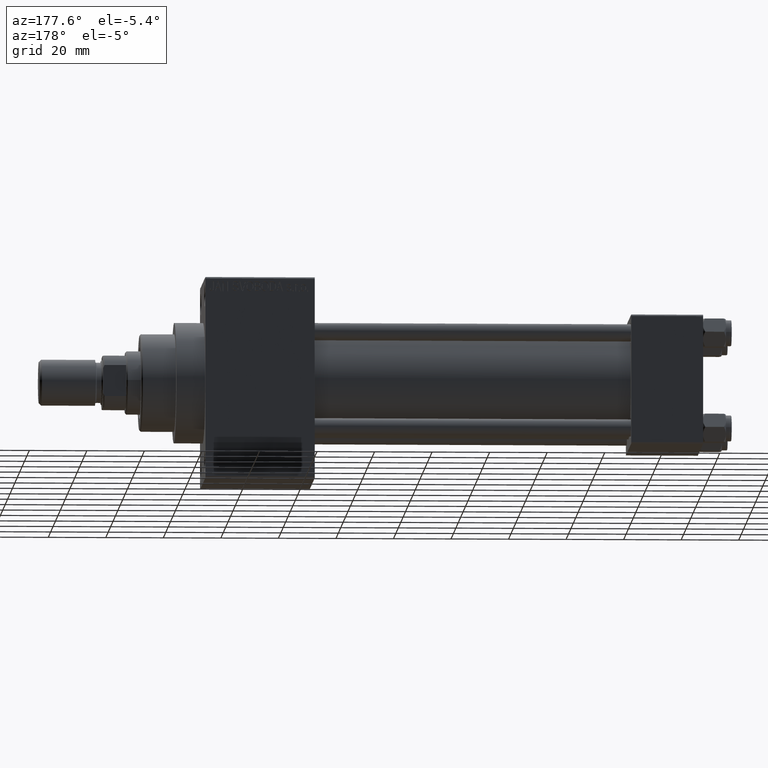
[diagram: clean part render]
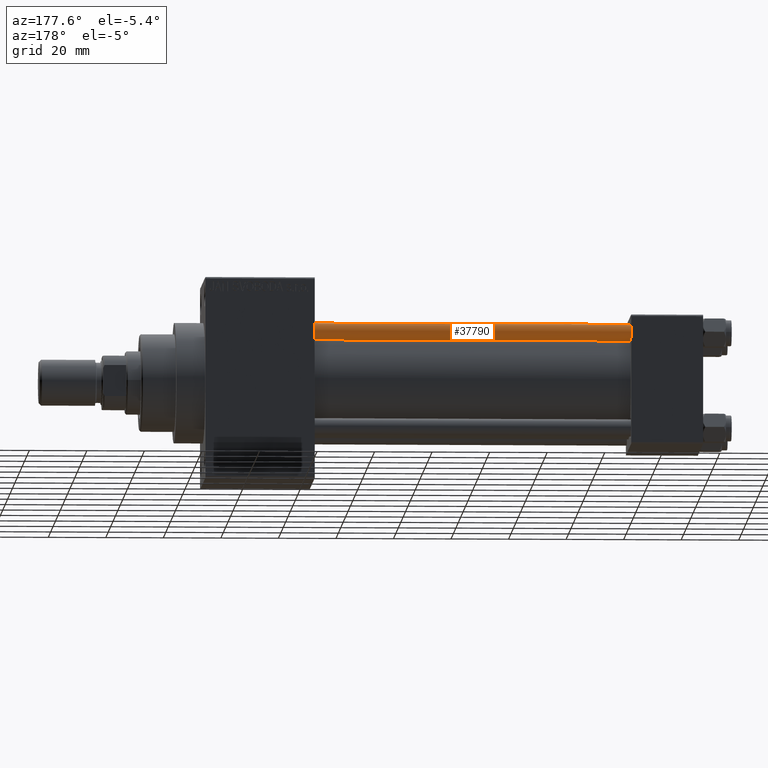
[diagram: same view with one face highlighted and labeled with its STEP entity id]
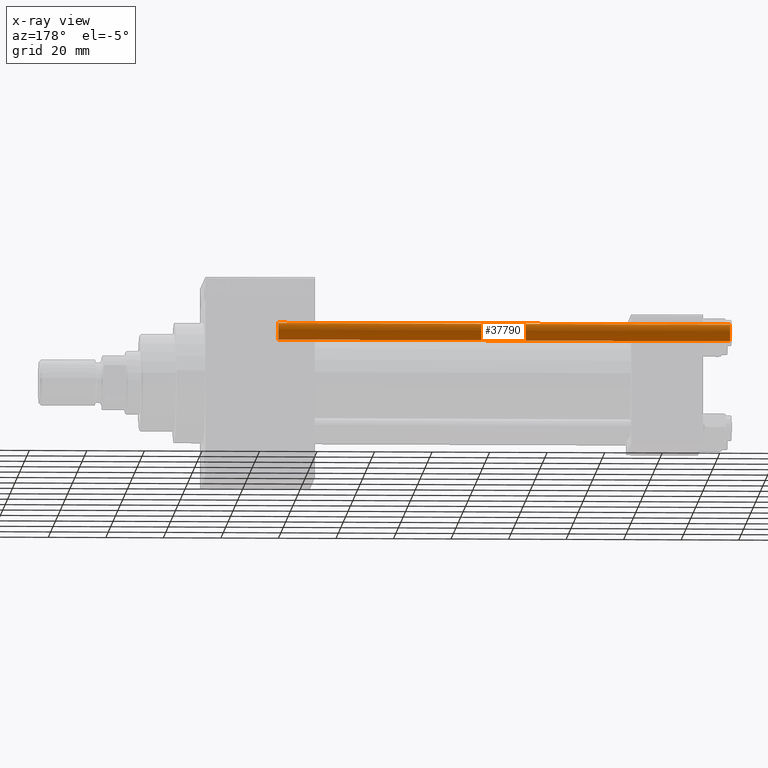
[diagram: x-ray of the same camera — body ghosted, the highlighted face saturated]
A machine part, auxiliary view. The second image highlights one B-rep face of the part: STEP entity #37790.
The next image is the same camera in x-ray: the body ghosted, the highlighted face saturated — about 0% of this face is hidden behind the body in this view.
In plain terms, the highlighted cylindrical surface (edge-blend (fillet) strip) has radius 3 mm, axis along (-1, -0, 0).
Its self-contained STEP definition (entity closure, byte-faithful):
#3373 = LINE ( 'NONE', #26233, #21064 ) ;
#4177 = ORIENTED_EDGE ( 'NONE', *, *, #46948, .F. ) ;
#7260 = DIRECTION ( 'NONE',  ( 1.000000000000000000, 0.000000000000000000, 0.000000000000000000 ) ) ;
#7855 = ORIENTED_EDGE ( 'NONE', *, *, #10869, .T. ) ;
#8007 = VERTEX_POINT ( 'NONE', #37682 ) ;
#9342 = VERTEX_POINT ( 'NONE', #15535 ) ;
#9354 = DIRECTION ( 'NONE',  ( -0.000000000000000000, -0.000000000000000000, -1.000000000000000000 ) ) ;
#10849 = DIRECTION ( 'NONE',  ( -0.000000000000000000, -0.000000000000000000, -1.000000000000000000 ) ) ;
#10869 = EDGE_CURVE ( 'NONE', #42900, #9342, #3373, .T. ) ;
#12702 = ORIENTED_EDGE ( 'NONE', *, *, #26917, .T. ) ;
#15535 = CARTESIAN_POINT ( 'NONE',  ( 3.000000000000000444, 3.673940397442060361E-16, 0.5000000000000281997 ) ) ;
#16822 = CARTESIAN_POINT ( 'NONE',  ( -3.000000000000000444, 0.000000000000000000, 158.0000000000000000 ) ) ;
#17456 = AXIS2_PLACEMENT_3D ( 'NONE', #31341, #46029, #7260 ) ;
#17839 = AXIS2_PLACEMENT_3D ( 'NONE', #46686, #10849, #42839 ) ;
#18155 = DIRECTION ( 'NONE',  ( 1.000000000000000000, 0.000000000000000000, 0.000000000000000000 ) ) ;
#18206 = CIRCLE ( 'NONE', #17456, 3.000000000000000444 ) ;
#18539 = ORIENTED_EDGE ( 'NONE', *, *, #41991, .T. ) ;
#19582 = CARTESIAN_POINT ( 'NONE',  ( 3.000000000000000444, 3.673940397442060361E-16, 157.5000000000000000 ) ) ;
#19947 = LINE ( 'NONE', #16822, #30556 ) ;
#21064 = VECTOR ( 'NONE', #37043, 1000.000000000000000 ) ;
#23503 = CARTESIAN_POINT ( 'NONE',  ( -3.000000000000000444, 0.000000000000000000, 157.5000000000000000 ) ) ;
#24401 = AXIS2_PLACEMENT_3D ( 'NONE', #28274, #28746, #18155 ) ;
#26233 = CARTESIAN_POINT ( 'NONE',  ( 3.000000000000000444, 3.673940397442060361E-16, 158.0000000000000000 ) ) ;
#26917 = EDGE_CURVE ( 'NONE', #29677, #42900, #45129, .T. ) ;
#28274 = CARTESIAN_POINT ( 'NONE',  ( 0.000000000000000000, 0.000000000000000000, 157.5000000000000000 ) ) ;
#28621 = EDGE_LOOP ( 'NONE', ( #12702, #7855, #18539, #4177 ) ) ;
#28640 = FACE_OUTER_BOUND ( 'NONE', #28621, .T. ) ;
#28746 = DIRECTION ( 'NONE',  ( 0.000000000000000000, 0.000000000000000000, -1.000000000000000000 ) ) ;
#29677 = VERTEX_POINT ( 'NONE', #23503 ) ;
#30556 = VECTOR ( 'NONE', #9354, 1000.000000000000000 ) ;
#31341 = CARTESIAN_POINT ( 'NONE',  ( 0.000000000000000000, 0.000000000000000000, 0.5000000000000281997 ) ) ;
#37043 = DIRECTION ( 'NONE',  ( -0.000000000000000000, -0.000000000000000000, -1.000000000000000000 ) ) ;
#37682 = CARTESIAN_POINT ( 'NONE',  ( -3.000000000000000444, 0.000000000000000000, 0.5000000000000281997 ) ) ;
#37790 = ADVANCED_FACE ( 'NONE', ( #28640 ), #43796, .T. ) ;
#41991 = EDGE_CURVE ( 'NONE', #9342, #8007, #18206, .T. ) ;
#42839 = DIRECTION ( 'NONE',  ( -1.000000000000000000, 0.000000000000000000, 0.000000000000000000 ) ) ;
#42900 = VERTEX_POINT ( 'NONE', #19582 ) ;
#43796 = CYLINDRICAL_SURFACE ( 'NONE', #17839, 3.000000000000000444 ) ;
#45129 = CIRCLE ( 'NONE', #24401, 3.000000000000000444 ) ;
#46029 = DIRECTION ( 'NONE',  ( -0.000000000000000000, -0.000000000000000000, 1.000000000000000000 ) ) ;
#46686 = CARTESIAN_POINT ( 'NONE',  ( 0.000000000000000000, 0.000000000000000000, 158.0000000000000000 ) ) ;
#46948 = EDGE_CURVE ( 'NONE', #29677, #8007, #19947, .T. ) ;